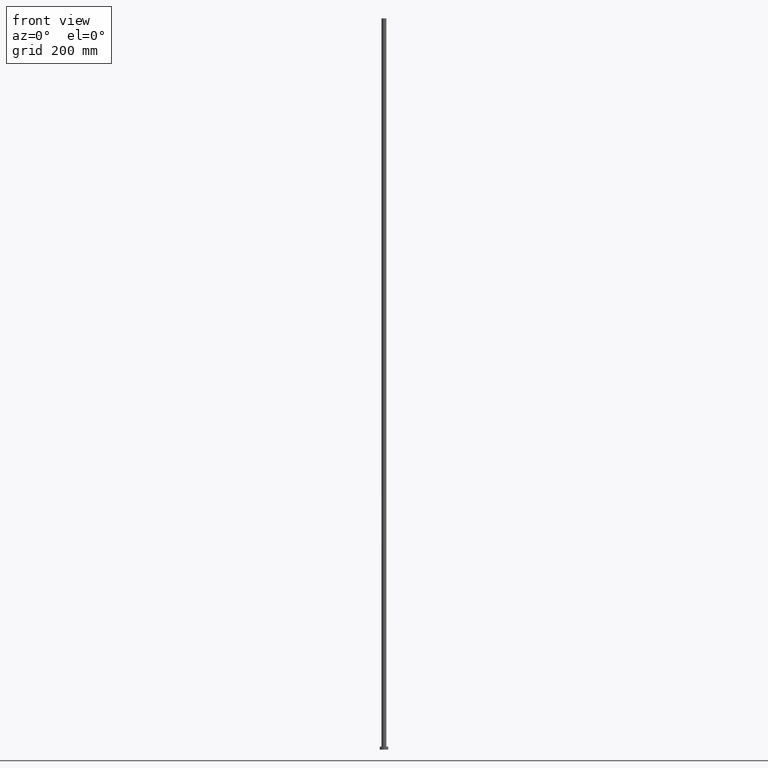
[diagram: clean part render]
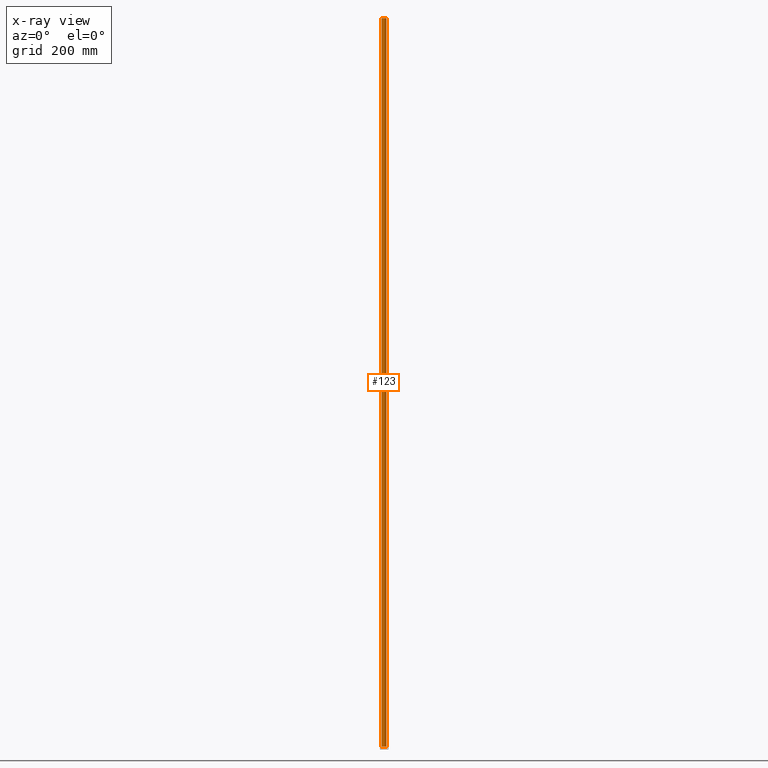
[diagram: x-ray — body ghosted, one internal face saturated and labeled with its STEP entity id]
A machine part, front view, then the same camera in x-ray: the body is ghosted and one INTERNAL B-rep face — a face not visible from any outside direction — is saturated and labeled: STEP entity #123.
In plain terms, the highlighted cylindrical surface (edge-blend (fillet) strip) has radius 4 mm, axis along (-0, -0, -1).
Its self-contained STEP definition (entity closure, byte-faithful):
#2 = CYLINDRICAL_SURFACE ( 'NONE', #151, 4.000000000000000000 ) ;
#4 = CARTESIAN_POINT ( 'NONE',  ( 4.000000000000000000, 4.898587196589412829E-16, 1200.000000000000000 ) ) ;
#5 = CARTESIAN_POINT ( 'NONE',  ( 0.000000000000000000, 0.000000000000000000, 1200.000000000000000 ) ) ;
#12 = CIRCLE ( 'NONE', #93, 4.000000000000000000 ) ;
#20 = VERTEX_POINT ( 'NONE', #237 ) ;
#23 = ORIENTED_EDGE ( 'NONE', *, *, #214, .T. ) ;
#25 = EDGE_CURVE ( 'NONE', #132, #90, #239, .T. ) ;
#31 = DIRECTION ( 'NONE',  ( 1.000000000000000000, 0.000000000000000000, 0.000000000000000000 ) ) ;
#33 = CARTESIAN_POINT ( 'NONE',  ( 0.000000000000000000, 0.000000000000000000, 5.000000000000000000 ) ) ;
#36 = DIRECTION ( 'NONE',  ( 0.000000000000000000, 0.000000000000000000, 1.000000000000000000 ) ) ;
#46 = CARTESIAN_POINT ( 'NONE',  ( -4.000000000000000000, 0.000000000000000000, 5.000000000000000000 ) ) ;
#47 = DIRECTION ( 'NONE',  ( -1.000000000000000000, 0.000000000000000000, 0.000000000000000000 ) ) ;
#48 = ORIENTED_EDGE ( 'NONE', *, *, #25, .T. ) ;
#53 = VERTEX_POINT ( 'NONE', #46 ) ;
#64 = VECTOR ( 'NONE', #120, 1000.000000000000000 ) ;
#73 = CIRCLE ( 'NONE', #135, 4.000000000000000000 ) ;
#75 = ORIENTED_EDGE ( 'NONE', *, *, #145, .F. ) ;
#82 = DIRECTION ( 'NONE',  ( -0.000000000000000000, -0.000000000000000000, -1.000000000000000000 ) ) ;
#87 = CARTESIAN_POINT ( 'NONE',  ( 4.000000000000000000, 4.898587196589412829E-16, 5.000000000000000000 ) ) ;
#90 = VERTEX_POINT ( 'NONE', #87 ) ;
#93 = AXIS2_PLACEMENT_3D ( 'NONE', #246, #112, #31 ) ;
#97 = EDGE_LOOP ( 'NONE', ( #227, #48, #23, #75 ) ) ;
#112 = DIRECTION ( 'NONE',  ( 0.000000000000000000, 0.000000000000000000, 1.000000000000000000 ) ) ;
#120 = DIRECTION ( 'NONE',  ( -0.000000000000000000, -0.000000000000000000, -1.000000000000000000 ) ) ;
#123 = ADVANCED_FACE ( 'NONE', ( #166 ), #2, .T. ) ;
#132 = VERTEX_POINT ( 'NONE', #4 ) ;
#135 = AXIS2_PLACEMENT_3D ( 'NONE', #33, #36, #185 ) ;
#145 = EDGE_CURVE ( 'NONE', #20, #53, #160, .T. ) ;
#151 = AXIS2_PLACEMENT_3D ( 'NONE', #5, #82, #47 ) ;
#160 = LINE ( 'NONE', #238, #243 ) ;
#166 = FACE_OUTER_BOUND ( 'NONE', #97, .T. ) ;
#185 = DIRECTION ( 'NONE',  ( 1.000000000000000000, 0.000000000000000000, 0.000000000000000000 ) ) ;
#196 = CARTESIAN_POINT ( 'NONE',  ( 4.000000000000000000, 4.898587196589412829E-16, 1200.000000000000000 ) ) ;
#200 = DIRECTION ( 'NONE',  ( -0.000000000000000000, -0.000000000000000000, -1.000000000000000000 ) ) ;
#214 = EDGE_CURVE ( 'NONE', #90, #53, #73, .T. ) ;
#227 = ORIENTED_EDGE ( 'NONE', *, *, #250, .F. ) ;
#237 = CARTESIAN_POINT ( 'NONE',  ( -4.000000000000000000, 0.000000000000000000, 1200.000000000000000 ) ) ;
#238 = CARTESIAN_POINT ( 'NONE',  ( -4.000000000000000000, 0.000000000000000000, 1200.000000000000000 ) ) ;
#239 = LINE ( 'NONE', #196, #64 ) ;
#243 = VECTOR ( 'NONE', #200, 1000.000000000000000 ) ;
#246 = CARTESIAN_POINT ( 'NONE',  ( 0.000000000000000000, 0.000000000000000000, 1200.000000000000000 ) ) ;
#250 = EDGE_CURVE ( 'NONE', #132, #20, #12, .T. ) ;